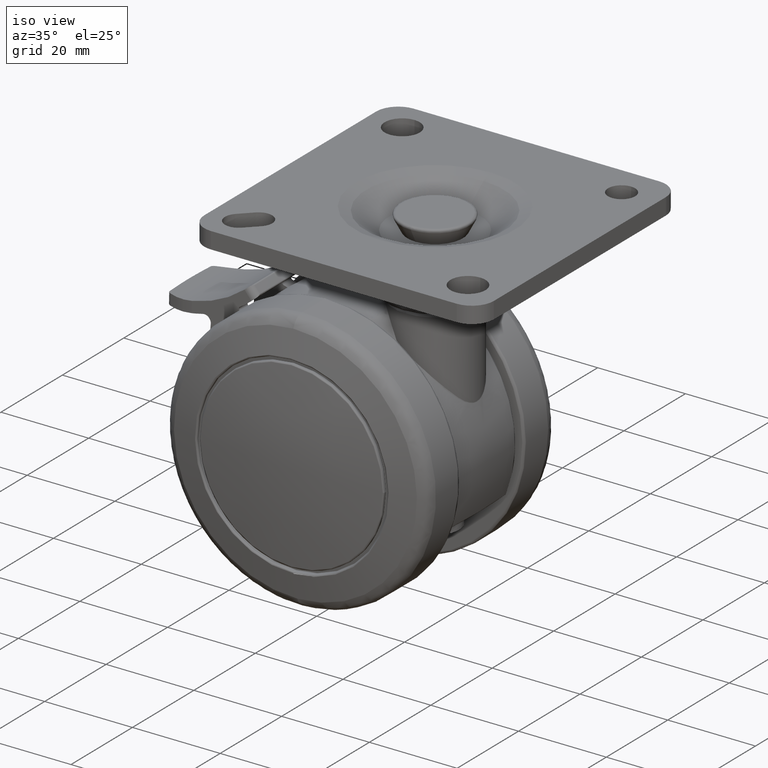
[diagram: clean part render]
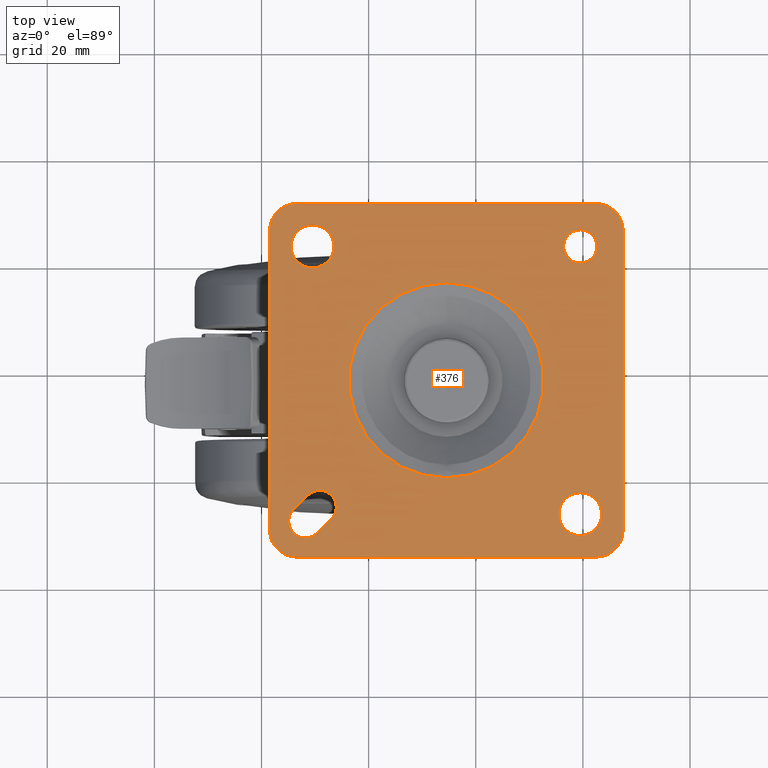
[diagram: tour spotlight — one face highlighted and labeled with its STEP entity id]
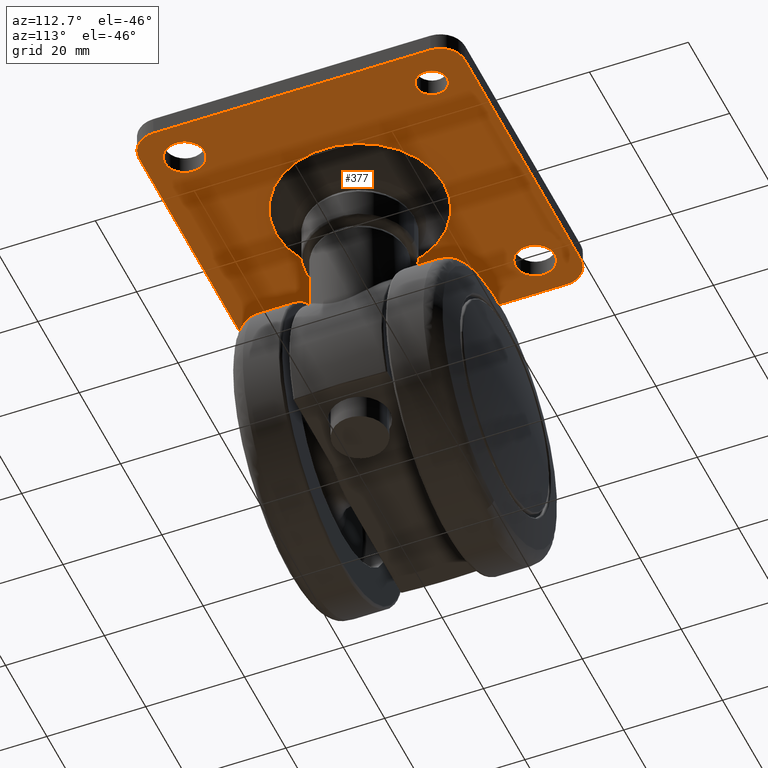
[diagram: tour spotlight — one face highlighted and labeled with its STEP entity id]
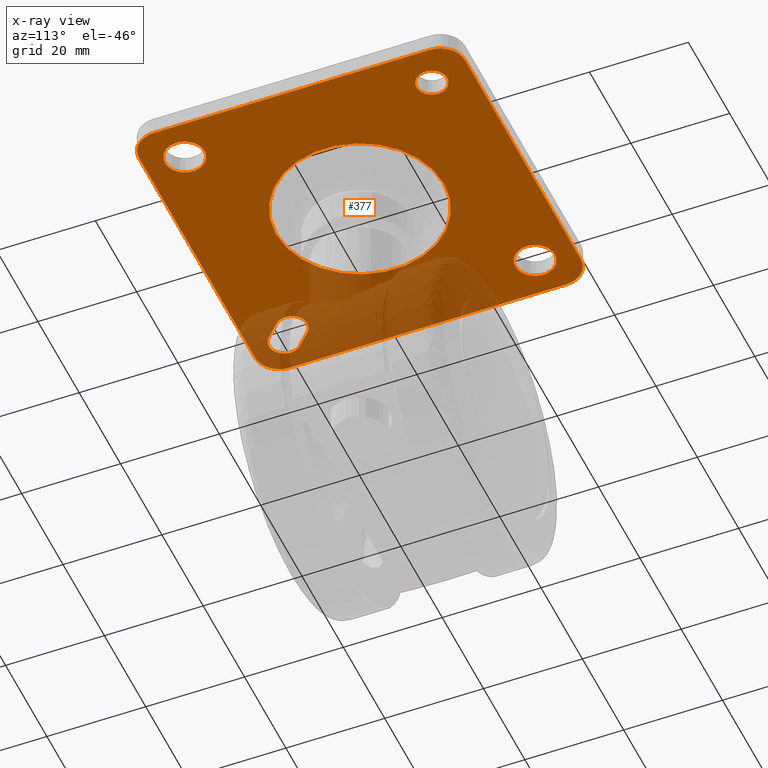
[diagram: x-ray of the same camera — body ghosted, this tour face saturated]
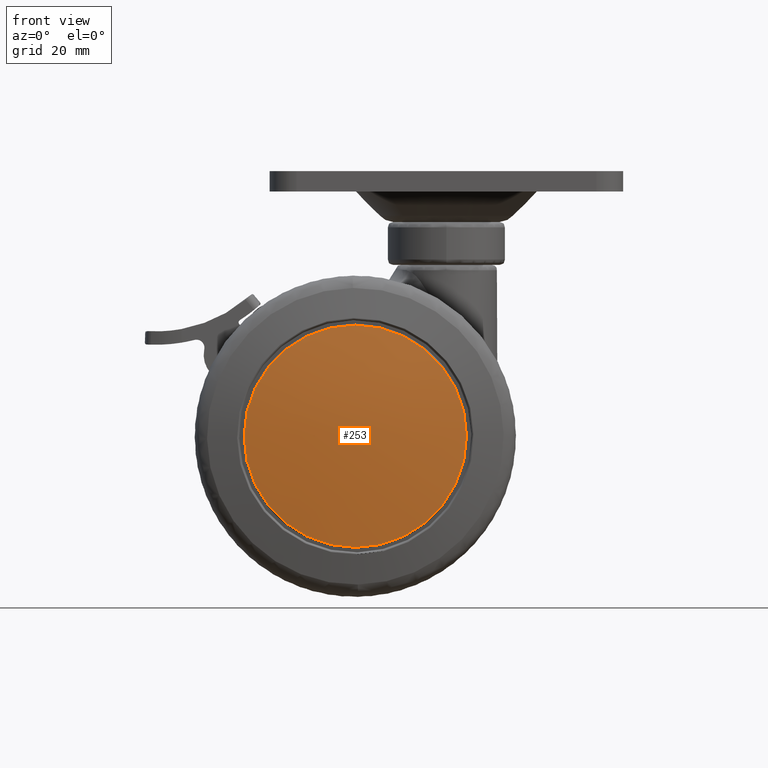
[diagram: tour spotlight — one face highlighted and labeled with its STEP entity id]
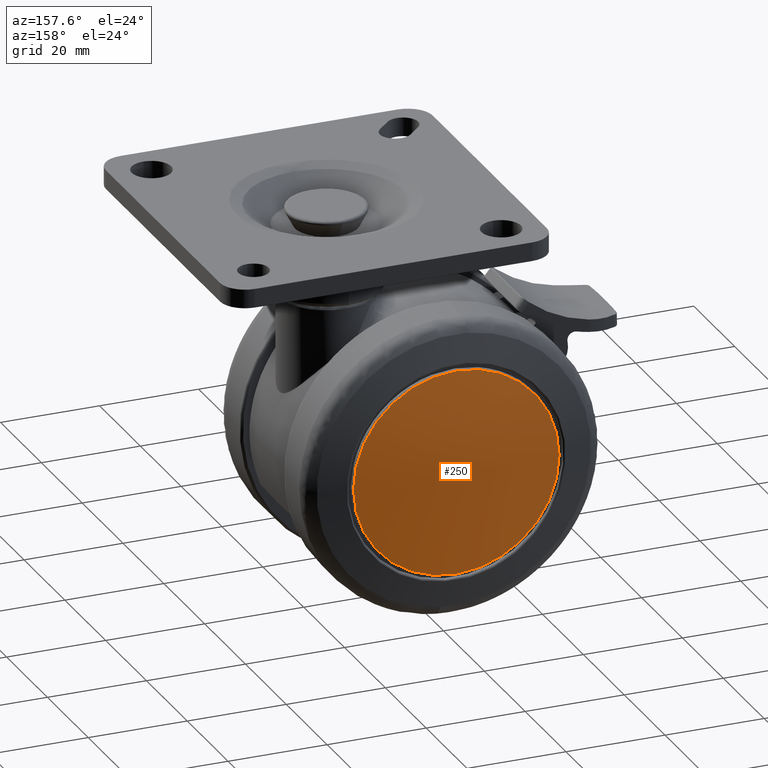
[diagram: tour spotlight — one face highlighted and labeled with its STEP entity id]
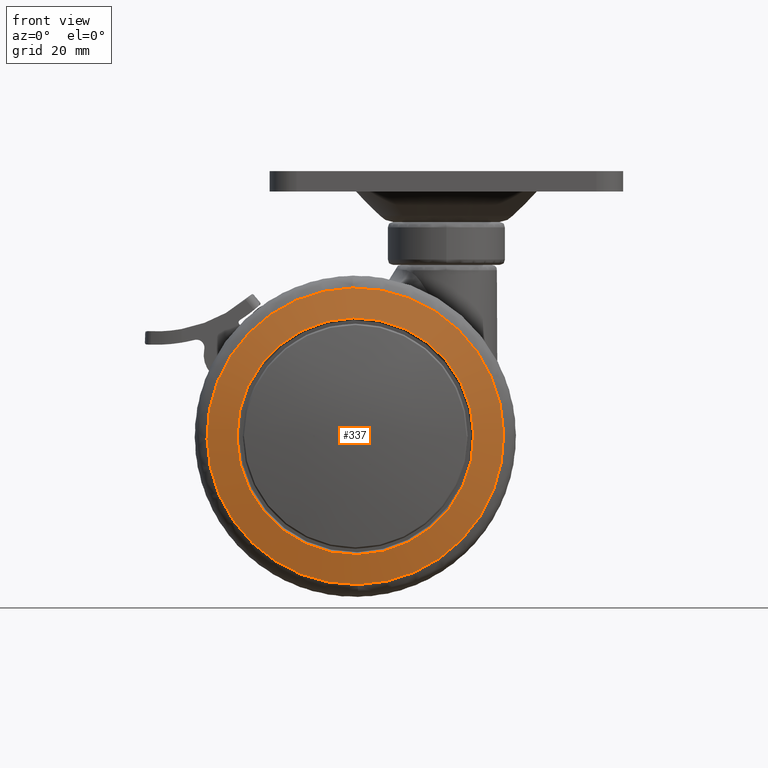
[diagram: tour spotlight — one face highlighted and labeled with its STEP entity id]
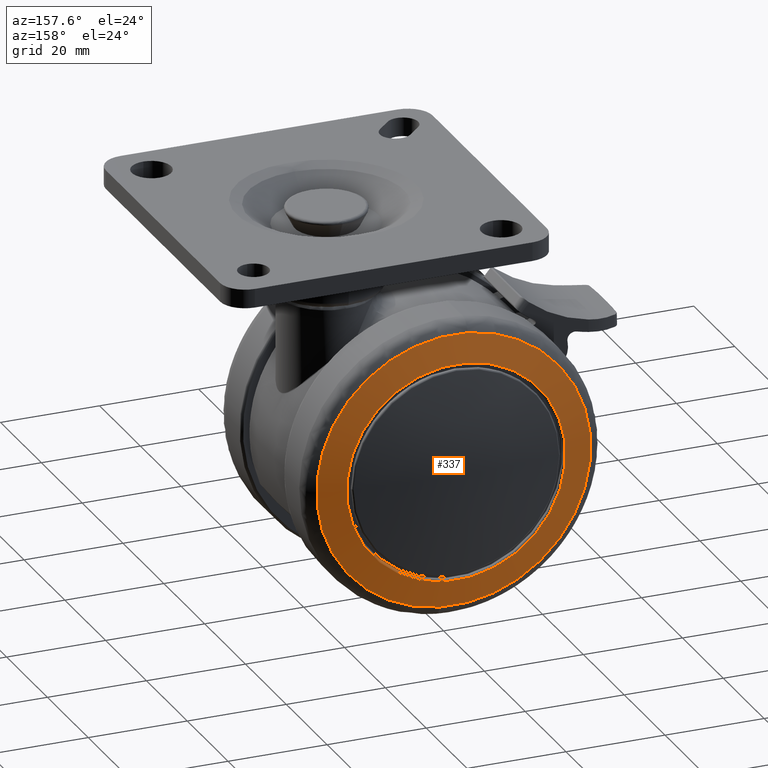
[diagram: tour spotlight — one face highlighted and labeled with its STEP entity id]
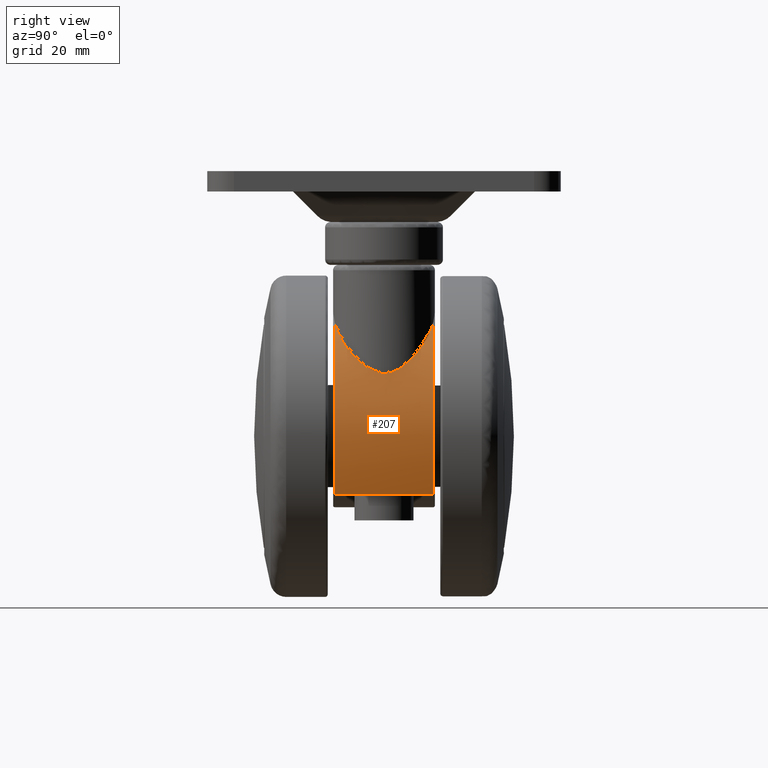
[diagram: tour spotlight — one face highlighted and labeled with its STEP entity id]
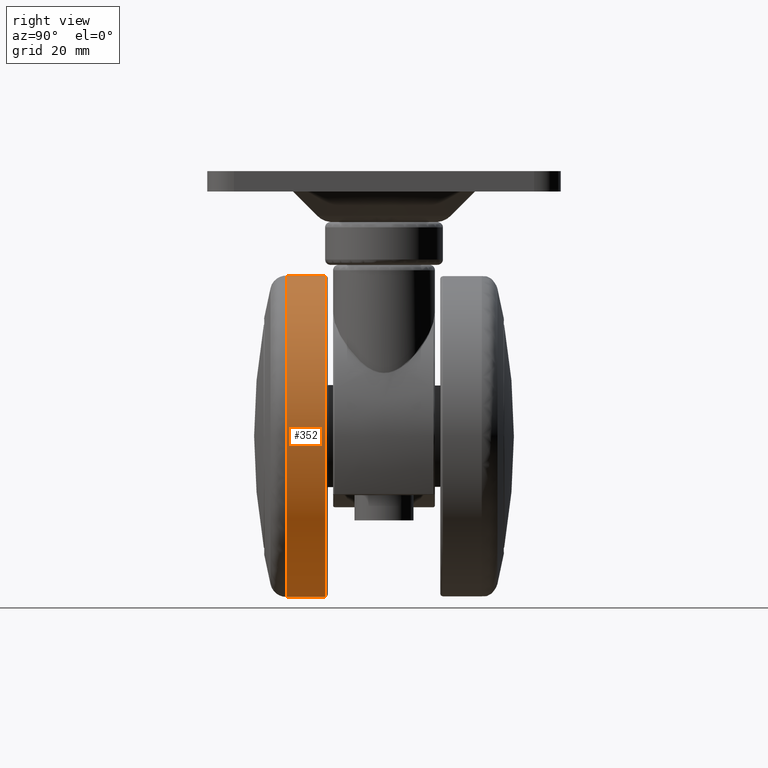
[diagram: tour spotlight — one face highlighted and labeled with its STEP entity id]
A machine part: a face-by-face anatomy tour. The part has 268 B-rep faces; the first image is the clean iso view, then the 8 largest visible faces are spotlighted one at a time (largest first), each with its STEP entity span.

Face 1 — top view, entity #376. In plain terms, the highlighted planar face has unit normal (-0, -0, -1).
Definition (entity closure, byte-faithful):
#376=ADVANCED_FACE('',(#2256,#2257,#2258,#2259,#2260,#2261),#2255,.F.);
#2255=PLANE('',#6944);
#2256=FACE_OUTER_BOUND('',#6945,.T.);
#2257=FACE_BOUND('',#6946,.T.);
#2258=FACE_BOUND('',#6947,.T.);
#2259=FACE_BOUND('',#6948,.T.);
#2260=FACE_BOUND('',#6949,.T.);
#2261=FACE_BOUND('',#6950,.T.);
#6941=CARTESIAN_POINT('',(-3.96000000000E+01,9.78097097541E-28,-3.96000000000E+01));
#6942=DIRECTION('',(-3.30514048027E-30,1.00000000000E+00,2.80045621353E-29));
#6943=DIRECTION('',(-9.99200722163E-16,-2.80045621353E-29,1.00000000000E+00));
#6944=AXIS2_PLACEMENT_3D('',#6941,#6942,#6943);
#6945=EDGE_LOOP('',(#8259,#8260,#8261,#8262,#8263,#8264,#8265,#8266));
#6946=EDGE_LOOP('',(#8267,#8268));
#6947=EDGE_LOOP('',(#8269,#8270,#8271,#8272));
#6948=EDGE_LOOP('',(#8273,#8274));
#6949=EDGE_LOOP('',(#8275,#8276));
#6950=EDGE_LOOP('',(#8277,#8278));
#8259=ORIENTED_EDGE('',*,*,#8905,.F.);
#8260=ORIENTED_EDGE('',*,*,#8906,.T.);
#8261=ORIENTED_EDGE('',*,*,#8907,.F.);
#8262=ORIENTED_EDGE('',*,*,#8908,.T.);
#8263=ORIENTED_EDGE('',*,*,#8909,.F.);
#8264=ORIENTED_EDGE('',*,*,#8910,.T.);
#8265=ORIENTED_EDGE('',*,*,#8911,.F.);
#8266=ORIENTED_EDGE('',*,*,#8912,.T.);
#8267=ORIENTED_EDGE('',*,*,#8913,.T.);
#8268=ORIENTED_EDGE('',*,*,#8914,.T.);
#8269=ORIENTED_EDGE('',*,*,#8915,.F.);
#8270=ORIENTED_EDGE('',*,*,#8916,.F.);
#8271=ORIENTED_EDGE('',*,*,#8917,.F.);
#8272=ORIENTED_EDGE('',*,*,#8918,.F.);
#8273=ORIENTED_EDGE('',*,*,#8919,.F.);
#8274=ORIENTED_EDGE('',*,*,#8920,.F.);
#8275=ORIENTED_EDGE('',*,*,#8921,.F.);
#8276=ORIENTED_EDGE('',*,*,#8922,.F.);
#8277=ORIENTED_EDGE('',*,*,#8923,.F.);
#8278=ORIENTED_EDGE('',*,*,#8924,.F.);
#8905=EDGE_CURVE('',#11885,#11886,#11887,.T.);
#8906=EDGE_CURVE('',#11885,#11893,#11894,.T.);
#8907=EDGE_CURVE('',#11900,#11893,#11901,.T.);
#8908=EDGE_CURVE('',#11900,#11907,#11908,.T.);
#8909=EDGE_CURVE('',#11914,#11907,#11915,.T.);
#8910=EDGE_CURVE('',#11914,#11921,#11922,.T.);
#8911=EDGE_CURVE('',#11928,#11921,#11929,.T.);
#8912=EDGE_CURVE('',#11928,#11886,#11935,.T.);
#8913=EDGE_CURVE('',#11941,#11942,#11943,.T.);
#8914=EDGE_CURVE('',#11942,#11941,#11949,.T.);
#8915=EDGE_CURVE('',#11955,#11956,#11957,.T.);
#8916=EDGE_CURVE('',#11963,#11955,#11964,.T.);
#8917=EDGE_CURVE('',#11970,#11963,#11971,.T.);
#8918=EDGE_CURVE('',#11956,#11970,#11977,.T.);
#8919=EDGE_CURVE('',#11983,#11984,#11985,.T.);
#8920=EDGE_CURVE('',#11984,#11983,#11991,.T.);
#8921=EDGE_CURVE('',#11997,#11998,#11999,.T.);
#8922=EDGE_CURVE('',#11998,#11997,#12005,.T.);
#8923=EDGE_CURVE('',#12011,#12012,#12013,.T.);
#8924=EDGE_CURVE('',#12012,#12011,#12019,.T.);
#11885=VERTEX_POINT('',#14919);
#11886=VERTEX_POINT('',#14920);
#11887=LINE('',#14921,#14922);
#11893=VERTEX_POINT('',#14924);
#11894=CIRCLE('',#14928,5.00000000000E+00);
#11900=VERTEX_POINT('',#14929);
#11901=LINE('',#14930,#14931);
#11907=VERTEX_POINT('',#14933);
#11908=CIRCLE('',#14937,5.00000000000E+00);
#11914=VERTEX_POINT('',#14938);
#11915=LINE('',#14939,#14940);
#11921=VERTEX_POINT('',#14942);
#11922=CIRCLE('',#14946,5.00000000000E+00);
#11928=VERTEX_POINT('',#14947);
#11929=LINE('',#14948,#14949);
#11935=CIRCLE('',#14954,5.00000000000E+00);
#11941=VERTEX_POINT('',#14955);
#11942=VERTEX_POINT('',#14956);
#11943=CIRCLE('',#14960,1.81938810846E+01);
#11949=CIRCLE('',#14964,1.81938810846E+01);
#11955=VERTEX_POINT('',#14965);
#11956=VERTEX_POINT('',#14966);
#11957=LINE('',#14967,#14968);
#11963=VERTEX_POINT('',#14970);
#11964=CIRCLE('',#14974,3.10000000000E+00);
#11970=VERTEX_POINT('',#14975);
#11971=LINE('',#14976,#14977);
#11977=CIRCLE('',#14982,3.10000000000E+00);
#11983=VERTEX_POINT('',#14983);
#11984=VERTEX_POINT('',#14984);
#11985=CIRCLE('',#14988,3.10000000000E+00);
#11991=CIRCLE('',#14992,3.10000000000E+00);
#11997=VERTEX_POINT('',#14993);
#11998=VERTEX_POINT('',#14994);
#11999=CIRCLE('',#14998,4.00000000000E+00);
#12005=CIRCLE('',#15002,4.00000000000E+00);
#12011=VERTEX_POINT('',#15003);
#12012=VERTEX_POINT('',#15004);
#12013=CIRCLE('',#15008,4.00000000000E+00);
#12019=CIRCLE('',#15012,4.00000000000E+00);
#14919=CARTESIAN_POINT('',(2.80000000000E+01,-8.32667268469E-14,-3.30000000000E+01));
#14920=CARTESIAN_POINT('',(-2.80000000000E+01,-8.32667268469E-14,-3.30000000000E+01));
#14921=CARTESIAN_POINT('',(2.80000000000E+01,-8.32667268469E-14,-3.30000000000E+01));
#14922=VECTOR('',#14923,5.60000000000E+01);
#14923=DIRECTION('',(-1.00000000000E+00,0.00000000000E+00,1.26882631386E-16));
#14924=CARTESIAN_POINT('',(3.30000000000E+01,0.00000000000E+00,-2.80000000000E+01));
#14925=CARTESIAN_POINT('',(2.80000000000E+01,0.00000000000E+00,-2.80000000000E+01));
#14926=DIRECTION('',(3.30514048027E-30,-1.00000000000E+00,2.77679038638E-29));
#14927=DIRECTION('',(-8.52651282912E-15,2.77679038638E-29,1.00000000000E+00));
#14928=AXIS2_PLACEMENT_3D('',#14925,#14926,#14927);
#14929=CARTESIAN_POINT('',(3.30000000000E+01,0.00000000000E+00,2.80000000000E+01));
#14930=CARTESIAN_POINT('',(3.30000000000E+01,0.00000000000E+00,2.80000000000E+01));
#14931=VECTOR('',#14932,5.60000000000E+01);
#14932=DIRECTION('',(0.00000000000E+00,0.00000000000E+00,-1.00000000000E+00));
#14933=CARTESIAN_POINT('',(2.80000000000E+01,0.00000000000E+00,3.30000000000E+01));
#14934=CARTESIAN_POINT('',(2.80000000000E+01,0.00000000000E+00,2.80000000000E+01));
#14935=DIRECTION('',(3.30514048027E-30,-1.00000000000E+00,2.83989925880E-29));
#14936=DIRECTION('',(-1.00000000000E+00,-3.30514048027E-30,7.81597009336E-15));
#14937=AXIS2_PLACEMENT_3D('',#14934,#14935,#14936);
#14938=CARTESIAN_POINT('',(-2.80000000000E+01,0.00000000000E+00,3.30000000000E+01));
#14939=CARTESIAN_POINT('',(-2.80000000000E+01,0.00000000000E+00,3.30000000000E+01));
#14940=VECTOR('',#14941,5.60000000000E+01);
#14941=DIRECTION('',(1.00000000000E+00,0.00000000000E+00,-2.53765262771E-16));
#14942=CARTESIAN_POINT('',(-3.30000000000E+01,0.00000000000E+00,2.80000000000E+01));
#14943=CARTESIAN_POINT('',(-2.80000000000E+01,0.00000000000E+00,2.80000000000E+01));
#14944=DIRECTION('',(3.30514048027E-30,-1.00000000000E+00,2.83989925880E-29));
#14945=DIRECTION('',(4.26325641456E-15,-2.83989925880E-29,-1.00000000000E+00));
#14946=AXIS2_PLACEMENT_3D('',#14943,#14944,#14945);
#14947=CARTESIAN_POINT('',(-3.30000000000E+01,0.00000000000E+00,-2.80000000000E+01));
#14948=CARTESIAN_POINT('',(-3.30000000000E+01,0.00000000000E+00,-2.80000000000E+01));
#14949=VECTOR('',#14950,5.60000000000E+01);
#14950=DIRECTION('',(2.53765262771E-16,0.00000000000E+00,1.00000000000E+00));
#14951=CARTESIAN_POINT('',(-2.80000000000E+01,0.00000000000E+00,-2.80000000000E+01));
#14952=DIRECTION('',(3.30514048027E-30,-1.00000000000E+00,2.83989925880E-29));
#14953=DIRECTION('',(1.00000000000E+00,3.30514048027E-30,-1.27897692437E-14));
#14954=AXIS2_PLACEMENT_3D('',#14951,#14952,#14953);
#14955=CARTESIAN_POINT('',(-1.81793391187E-14,5.17492753825E-28,1.81938810846E+01));
#14956=CARTESIAN_POINT('',(1.95399252334E-14,-5.17492753825E-28,-1.81938810846E+01));
#14957=CARTESIAN_POINT('',(0.00000000000E+00,0.00000000000E+00,9.02056207508E-14));
#14958=DIRECTION('',(-3.30514048027E-30,1.00000000000E+00,-2.84432305245E-29));
#14959=DIRECTION('',(-1.12166135754E-15,2.84432305245E-29,1.00000000000E+00));
#14960=AXIS2_PLACEMENT_3D('',#14957,#14958,#14959);
#14961=CARTESIAN_POINT('',(0.00000000000E+00,0.00000000000E+00,9.02056207508E-14));
#14962=DIRECTION('',(-3.30514048027E-30,1.00000000000E+00,-2.84432305245E-29));
#14963=DIRECTION('',(-1.12166135754E-15,2.84432305245E-29,1.00000000000E+00));
#14964=AXIS2_PLACEMENT_3D('',#14961,#14962,#14963);
#14965=CARTESIAN_POINT('',(-2.58485281374E+01,-8.32667268469E-14,-2.14644660941E+01));
#14966=CARTESIAN_POINT('',(-2.85355339059E+01,0.00000000000E+00,-2.41514718626E+01));
#14967=CARTESIAN_POINT('',(-2.58485281374E+01,-8.32667268469E-14,-2.14644660941E+01));
#14968=VECTOR('',#14969,3.80000000000E+00);
#14969=DIRECTION('',(-7.07106781187E-01,2.19122965387E-14,-7.07106781187E-01));
#14970=CARTESIAN_POINT('',(-2.14644660941E+01,0.00000000000E+00,-2.58485281374E+01));
#14971=CARTESIAN_POINT('',(-2.36564971157E+01,0.00000000000E+00,-2.36564971157E+01));
#14972=DIRECTION('',(3.30514048027E-30,-1.00000000000E+00,2.83989925880E-29));
#14973=DIRECTION('',(-7.07106781187E-01,1.77440329914E-29,7.07106781187E-01));
#14974=AXIS2_PLACEMENT_3D('',#14971,#14972,#14973);
#14975=CARTESIAN_POINT('',(-2.41514718626E+01,0.00000000000E+00,-2.85355339059E+01));
#14976=CARTESIAN_POINT('',(-2.41514718626E+01,0.00000000000E+00,-2.85355339059E+01));
#14977=VECTOR('',#14978,3.80000000000E+00);
#14978=DIRECTION('',(7.07106781187E-01,0.00000000000E+00,7.07106781187E-01));
#14979=CARTESIAN_POINT('',(-2.63435028843E+01,0.00000000000E+00,-2.63435028843E+01));
#14980=DIRECTION('',(3.30514048027E-30,-1.00000000000E+00,2.83989925880E-29));
#14981=DIRECTION('',(-1.14603667058E-15,2.83989925880E-29,1.00000000000E+00));
#14982=AXIS2_PLACEMENT_3D('',#14979,#14980,#14981);
#14983=CARTESIAN_POINT('',(2.50000000000E+01,8.80368770227E-29,2.81000000000E+01));
#14984=CARTESIAN_POINT('',(2.50000000000E+01,-8.80368770227E-29,2.19000000000E+01));
#14985=CARTESIAN_POINT('',(2.50000000000E+01,0.00000000000E+00,2.50000000000E+01));
#14986=DIRECTION('',(3.30514048027E-30,-1.00000000000E+00,2.83989925880E-29));
#14987=DIRECTION('',(1.14603667058E-15,-2.83989925880E-29,-1.00000000000E+00));
#14988=AXIS2_PLACEMENT_3D('',#14985,#14986,#14987);
#14989=CARTESIAN_POINT('',(2.50000000000E+01,0.00000000000E+00,2.50000000000E+01));
#14990=DIRECTION('',(3.30514048027E-30,-1.00000000000E+00,2.83989925880E-29));
#14991=DIRECTION('',(1.14603667058E-15,-2.83989925880E-29,-1.00000000000E+00));
#14992=AXIS2_PLACEMENT_3D('',#14989,#14990,#14991);
#14993=CARTESIAN_POINT('',(2.50000000000E+01,-8.32667268469E-14,-2.10000000000E+01));
#14994=CARTESIAN_POINT('',(2.50000000000E+01,-8.32667268469E-14,-2.90000000000E+01));
#14995=CARTESIAN_POINT('',(2.50000000000E+01,-8.32667268469E-14,-2.50000000000E+01));
#14996=DIRECTION('',(3.30514048027E-30,-1.00000000000E+00,2.83989925880E-29));
#14997=DIRECTION('',(8.88178419700E-16,-2.83989925880E-29,-1.00000000000E+00));
#14998=AXIS2_PLACEMENT_3D('',#14995,#14996,#14997);
#14999=CARTESIAN_POINT('',(2.50000000000E+01,-8.32667268469E-14,-2.50000000000E+01));
#15000=DIRECTION('',(3.30514048027E-30,-1.00000000000E+00,2.83989925880E-29));
#15001=DIRECTION('',(8.88178419700E-16,-2.83989925880E-29,-1.00000000000E+00));
#15002=AXIS2_PLACEMENT_3D('',#14999,#15000,#15001);
#15003=CARTESIAN_POINT('',(-2.50000000000E+01,1.13595970352E-28,2.90000000000E+01));
#15004=CARTESIAN_POINT('',(-2.50000000000E+01,-1.13595970352E-28,2.10000000000E+01));
#15005=CARTESIAN_POINT('',(-2.50000000000E+01,0.00000000000E+00,2.50000000000E+01));
#15006=DIRECTION('',(3.30514048027E-30,-1.00000000000E+00,2.83989925880E-29));
#15007=DIRECTION('',(8.88178419700E-16,-2.83989925880E-29,-1.00000000000E+00));
#15008=AXIS2_PLACEMENT_3D('',#15005,#15006,#15007);
#15009=CARTESIAN_POINT('',(-2.50000000000E+01,0.00000000000E+00,2.50000000000E+01));
#15010=DIRECTION('',(3.30514048027E-30,-1.00000000000E+00,2.83989925880E-29));
#15011=DIRECTION('',(8.88178419700E-16,-2.83989925880E-29,-1.00000000000E+00));
#15012=AXIS2_PLACEMENT_3D('',#15009,#15010,#15011);

Face 2 — auxiliary view, entity #377. An x-ray twin of the same camera follows (body ghosted, this face saturated) — the face is partly hidden behind the body. In plain terms, the highlighted planar face has unit normal (-0, -0, -1).
Definition (entity closure, byte-faithful):
#377=ADVANCED_FACE('',(#2271,#2272,#2273,#2274,#2275,#2276),#2270,.T.);
#2270=PLANE('',#6954);
#2271=FACE_OUTER_BOUND('',#6955,.T.);
#2272=FACE_BOUND('',#6956,.T.);
#2273=FACE_BOUND('',#6957,.T.);
#2274=FACE_BOUND('',#6958,.T.);
#2275=FACE_BOUND('',#6959,.T.);
#2276=FACE_BOUND('',#6960,.T.);
#6951=CARTESIAN_POINT('',(-3.96000000000E+01,3.80000000000E+00,-3.96000000000E+01));
#6952=DIRECTION('',(-3.30514048027E-30,1.00000000000E+00,2.80045621353E-29));
#6953=DIRECTION('',(-9.99200722163E-16,-2.80045621353E-29,1.00000000000E+00));
#6954=AXIS2_PLACEMENT_3D('',#6951,#6952,#6953);
#6955=EDGE_LOOP('',(#8279,#8280,#8281,#8282,#8283,#8284,#8285,#8286));
#6956=EDGE_LOOP('',(#8287,#8288,#8289,#8290));
#6957=EDGE_LOOP('',(#8291,#8292));
#6958=EDGE_LOOP('',(#8293,#8294));
#6959=EDGE_LOOP('',(#8295,#8296));
#6960=EDGE_LOOP('',(#8297,#8298));
#8279=ORIENTED_EDGE('',*,*,#8925,.T.);
#8280=ORIENTED_EDGE('',*,*,#8926,.T.);
#8281=ORIENTED_EDGE('',*,*,#8927,.T.);
#8282=ORIENTED_EDGE('',*,*,#8928,.T.);
#8283=ORIENTED_EDGE('',*,*,#8929,.T.);
#8284=ORIENTED_EDGE('',*,*,#8930,.T.);
#8285=ORIENTED_EDGE('',*,*,#8931,.T.);
#8286=ORIENTED_EDGE('',*,*,#8932,.T.);
#8287=ORIENTED_EDGE('',*,*,#8933,.F.);
#8288=ORIENTED_EDGE('',*,*,#8934,.F.);
#8289=ORIENTED_EDGE('',*,*,#8935,.F.);
#8290=ORIENTED_EDGE('',*,*,#8936,.F.);
#8291=ORIENTED_EDGE('',*,*,#8937,.F.);
#8292=ORIENTED_EDGE('',*,*,#8938,.F.);
#8293=ORIENTED_EDGE('',*,*,#8939,.F.);
#8294=ORIENTED_EDGE('',*,*,#8940,.F.);
#8295=ORIENTED_EDGE('',*,*,#8941,.F.);
#8296=ORIENTED_EDGE('',*,*,#8942,.F.);
#8297=ORIENTED_EDGE('',*,*,#8943,.F.);
#8298=ORIENTED_EDGE('',*,*,#8944,.F.);
#8925=EDGE_CURVE('',#12025,#12026,#12027,.T.);
#8926=EDGE_CURVE('',#12026,#12033,#12034,.T.);
#8927=EDGE_CURVE('',#12033,#12040,#12041,.T.);
#8928=EDGE_CURVE('',#12040,#12047,#12048,.T.);
#8929=EDGE_CURVE('',#12047,#12054,#12055,.T.);
#8930=EDGE_CURVE('',#12054,#12061,#12062,.T.);
#8931=EDGE_CURVE('',#12061,#12068,#12069,.T.);
#8932=EDGE_CURVE('',#12068,#12025,#12075,.T.);
#8933=EDGE_CURVE('',#12081,#12082,#12083,.T.);
#8934=EDGE_CURVE('',#12089,#12081,#12090,.T.);
#8935=EDGE_CURVE('',#12096,#12089,#12097,.T.);
#8936=EDGE_CURVE('',#12082,#12096,#12103,.T.);
#8937=EDGE_CURVE('',#12109,#12110,#12111,.T.);
#8938=EDGE_CURVE('',#12110,#12109,#12117,.T.);
#8939=EDGE_CURVE('',#12123,#12124,#12125,.T.);
#8940=EDGE_CURVE('',#12124,#12123,#12131,.T.);
#8941=EDGE_CURVE('',#12137,#12138,#12139,.T.);
#8942=EDGE_CURVE('',#12138,#12137,#12145,.T.);
#8943=EDGE_CURVE('',#12151,#12152,#12153,.T.);
#8944=EDGE_CURVE('',#12152,#12151,#12159,.T.);
#12025=VERTEX_POINT('',#15013);
#12026=VERTEX_POINT('',#15014);
#12027=LINE('',#15015,#15016);
#12033=VERTEX_POINT('',#15018);
#12034=CIRCLE('',#15022,5.00000000000E+00);
#12040=VERTEX_POINT('',#15023);
#12041=LINE('',#15024,#15025);
#12047=VERTEX_POINT('',#15027);
#12048=CIRCLE('',#15031,5.00000000000E+00);
#12054=VERTEX_POINT('',#15032);
#12055=LINE('',#15033,#15034);
#12061=VERTEX_POINT('',#15036);
#12062=CIRCLE('',#15040,5.00000000000E+00);
#12068=VERTEX_POINT('',#15041);
#12069=LINE('',#15042,#15043);
#12075=CIRCLE('',#15048,5.00000000000E+00);
#12081=VERTEX_POINT('',#15049);
#12082=VERTEX_POINT('',#15050);
#12083=CIRCLE('',#15054,3.10000000000E+00);
#12089=VERTEX_POINT('',#15055);
#12090=LINE('',#15056,#15057);
#12096=VERTEX_POINT('',#15059);
#12097=CIRCLE('',#15063,3.10000000000E+00);
#12103=LINE('',#15064,#15065);
#12109=VERTEX_POINT('',#15067);
#12110=VERTEX_POINT('',#15068);
#12111=CIRCLE('',#15072,3.10000000000E+00);
#12117=CIRCLE('',#15076,3.10000000000E+00);
#12123=VERTEX_POINT('',#15077);
#12124=VERTEX_POINT('',#15078);
#12125=CIRCLE('',#15082,4.00000000000E+00);
#12131=CIRCLE('',#15086,4.00000000000E+00);
#12137=VERTEX_POINT('',#15087);
#12138=VERTEX_POINT('',#15088);
#12139=CIRCLE('',#15092,4.00000000000E+00);
#12145=CIRCLE('',#15096,4.00000000000E+00);
#12151=VERTEX_POINT('',#15097);
#12152=VERTEX_POINT('',#15098);
#12153=CIRCLE('',#15102,1.70000000000E+01);
#12159=CIRCLE('',#15106,1.70000000000E+01);
#15013=CARTESIAN_POINT('',(3.30000000000E+01,3.80000000000E+00,2.80000000000E+01));
#15014=CARTESIAN_POINT('',(3.30000000000E+01,3.80000000000E+00,-2.80000000000E+01));
#15015=CARTESIAN_POINT('',(3.30000000000E+01,3.80000000000E+00,2.80000000000E+01));
#15016=VECTOR('',#15017,5.60000000000E+01);
#15017=DIRECTION('',(0.00000000000E+00,0.00000000000E+00,-1.00000000000E+00));
#15018=CARTESIAN_POINT('',(2.80000000000E+01,3.80000000000E+00,-3.30000000000E+01));
#15019=CARTESIAN_POINT('',(2.80000000000E+01,3.80000000000E+00,-2.80000000000E+01));
#15020=DIRECTION('',(0.00000000000E+00,1.00000000000E+00,-2.83989925880E-29));
#15021=DIRECTION('',(-1.00000000000E+00,-0.00000000000E+00,-0.00000000000E+00));
#15022=AXIS2_PLACEMENT_3D('',#15019,#15020,#15021);
#15023=CARTESIAN_POINT('',(-2.80000000000E+01,3.80000000000E+00,-3.30000000000E+01));
#15024=CARTESIAN_POINT('',(2.80000000000E+01,3.80000000000E+00,-3.30000000000E+01));
#15025=VECTOR('',#15026,5.60000000000E+01);
#15026=DIRECTION('',(-1.00000000000E+00,0.00000000000E+00,1.26882631386E-16));
#15027=CARTESIAN_POINT('',(-3.30000000000E+01,3.80000000000E+00,-2.80000000000E+01));
#15028=CARTESIAN_POINT('',(-2.80000000000E+01,3.80000000000E+00,-2.80000000000E+01));
#15029=DIRECTION('',(-3.30514048027E-30,1.00000000000E+00,-4.69688711785E-45));
#15030=DIRECTION('',(-1.42108547152E-15,-0.00000000000E+00,1.00000000000E+00));
#15031=AXIS2_PLACEMENT_3D('',#15028,#15029,#15030);
#15032=CARTESIAN_POINT('',(-3.30000000000E+01,3.80000000000E+00,2.80000000000E+01));
#15033=CARTESIAN_POINT('',(-3.30000000000E+01,3.80000000000E+00,-2.80000000000E+01));
#15034=VECTOR('',#15035,5.60000000000E+01);
#15035=DIRECTION('',(2.53765262771E-16,0.00000000000E+00,1.00000000000E+00));
#15036=CARTESIAN_POINT('',(-2.80000000000E+01,3.80000000000E+00,3.30000000000E+01));
#15037=CARTESIAN_POINT('',(-2.80000000000E+01,3.80000000000E+00,2.80000000000E+01));
#15038=DIRECTION('',(0.00000000000E+00,1.00000000000E+00,-2.83989925880E-29));
#15039=DIRECTION('',(1.00000000000E+00,-0.00000000000E+00,-0.00000000000E+00));
#15040=AXIS2_PLACEMENT_3D('',#15037,#15038,#15039);
#15041=CARTESIAN_POINT('',(2.80000000000E+01,3.80000000000E+00,3.30000000000E+01));
#15042=CARTESIAN_POINT('',(-2.80000000000E+01,3.80000000000E+00,3.30000000000E+01));
#15043=VECTOR('',#15044,5.60000000000E+01);
#15044=DIRECTION('',(1.00000000000E+00,0.00000000000E+00,-5.96348367513E-15));
#15045=CARTESIAN_POINT('',(2.80000000000E+01,3.80000000000E+00,2.80000000000E+01));
#15046=DIRECTION('',(-3.30514048027E-30,1.00000000000E+00,-3.99235405017E-44));
#15047=DIRECTION('',(1.20792265079E-14,-0.00000000000E+00,-1.00000000000E+00));
#15048=AXIS2_PLACEMENT_3D('',#15045,#15046,#15047);
#15049=CARTESIAN_POINT('',(-2.58485281374E+01,3.80000000000E+00,-2.14644660941E+01));
#15050=CARTESIAN_POINT('',(-2.14644660941E+01,3.80000000000E+00,-2.58485281374E+01));
#15051=CARTESIAN_POINT('',(-2.36564971157E+01,3.80000000000E+00,-2.36564971157E+01));
#15052=DIRECTION('',(-1.58520665341E-29,1.00000000000E+00,-1.58520665341E-29));
#15053=DIRECTION('',(7.07106781187E-01,-0.00000000000E+00,-7.07106781187E-01));
#15054=AXIS2_PLACEMENT_3D('',#15051,#15052,#15053);
#15055=CARTESIAN_POINT('',(-2.85355339059E+01,3.80000000000E+00,-2.41514718626E+01));
#15056=CARTESIAN_POINT('',(-2.85355339059E+01,3.80000000000E+00,-2.41514718626E+01));
#15057=VECTOR('',#15058,3.80000000000E+00);
#15058=DIRECTION('',(7.07106781187E-01,-2.19707293294E-14,7.07106781187E-01));
#15059=CARTESIAN_POINT('',(-2.41514718626E+01,3.80000000000E+00,-2.85355339059E+01));
#15060=CARTESIAN_POINT('',(-2.63435028843E+01,3.80000000000E+00,-2.63435028843E+01));
#15061=DIRECTION('',(-1.58520665341E-29,1.00000000000E+00,-1.58520665341E-29));
#15062=DIRECTION('',(7.07106781187E-01,2.74534793264E-45,-7.07106781187E-01));
#15063=AXIS2_PLACEMENT_3D('',#15060,#15061,#15062);
#15064=CARTESIAN_POINT('',(-2.14644660941E+01,3.80000000000E+00,-2.58485281374E+01));
#15065=VECTOR('',#15066,3.80000000000E+00);
#15066=DIRECTION('',(-7.07106781187E-01,0.00000000000E+00,-7.07106781187E-01));
#15067=CARTESIAN_POINT('',(2.50000000000E+01,3.80000000000E+00,2.19000000000E+01));
#15068=CARTESIAN_POINT('',(2.50000000000E+01,3.80000000000E+00,2.81000000000E+01));
#15069=CARTESIAN_POINT('',(2.50000000000E+01,3.80000000000E+00,2.50000000000E+01));
#15070=DIRECTION('',(-3.30514048027E-30,1.00000000000E+00,-3.78781219182E-45));
#15071=DIRECTION('',(-1.14603667058E-15,6.22301527786E-61,1.00000000000E+00));
#15072=AXIS2_PLACEMENT_3D('',#15069,#15070,#15071);
#15073=CARTESIAN_POINT('',(2.50000000000E+01,3.80000000000E+00,2.50000000000E+01));
#15074=DIRECTION('',(-3.30514048027E-30,1.00000000000E+00,-3.78781219182E-45));
#15075=DIRECTION('',(-1.14603667058E-15,6.22301527786E-61,1.00000000000E+00));
#15076=AXIS2_PLACEMENT_3D('',#15073,#15074,#15075);
#15077=CARTESIAN_POINT('',(2.50000000000E+01,3.80000000000E+00,-2.90000000000E+01));
#15078=CARTESIAN_POINT('',(2.50000000000E+01,3.80000000000E+00,-2.10000000000E+01));
#15079=CARTESIAN_POINT('',(2.50000000000E+01,3.80000000000E+00,-2.50000000000E+01));
#15080=DIRECTION('',(-3.30514048027E-30,1.00000000000E+00,-2.93555444866E-45));
#15081=DIRECTION('',(-8.88178419700E-16,-0.00000000000E+00,1.00000000000E+00));
#15082=AXIS2_PLACEMENT_3D('',#15079,#15080,#15081);
#15083=CARTESIAN_POINT('',(2.50000000000E+01,3.80000000000E+00,-2.50000000000E+01));
#15084=DIRECTION('',(-3.30514048027E-30,1.00000000000E+00,-2.93555444866E-45));
#15085=DIRECTION('',(-8.88178419700E-16,-0.00000000000E+00,1.00000000000E+00));
#15086=AXIS2_PLACEMENT_3D('',#15083,#15084,#15085);
#15087=CARTESIAN_POINT('',(-2.50000000000E+01,3.80000000000E+00,2.10000000000E+01));
#15088=CARTESIAN_POINT('',(-2.50000000000E+01,3.80000000000E+00,2.90000000000E+01));
#15089=CARTESIAN_POINT('',(-2.50000000000E+01,3.80000000000E+00,2.50000000000E+01));
#15090=DIRECTION('',(-3.30514048027E-30,1.00000000000E+00,-2.93555444866E-45));
#15091=DIRECTION('',(-8.88178419700E-16,-0.00000000000E+00,1.00000000000E+00));
#15092=AXIS2_PLACEMENT_3D('',#15089,#15090,#15091);
#15093=CARTESIAN_POINT('',(-2.50000000000E+01,3.80000000000E+00,2.50000000000E+01));
#15094=DIRECTION('',(-3.30514048027E-30,1.00000000000E+00,-2.93555444866E-45));
#15095=DIRECTION('',(-8.88178419700E-16,-0.00000000000E+00,1.00000000000E+00));
#15096=AXIS2_PLACEMENT_3D('',#15093,#15094,#15095);
#15097=CARTESIAN_POINT('',(-2.30926389122E-14,3.80000000000E+00,1.70000000000E+01));
#15098=CARTESIAN_POINT('',(1.69863435197E-14,3.80000000000E+00,-1.70000000000E+01));
#15099=CARTESIAN_POINT('',(0.00000000000E+00,3.80000000000E+00,7.63278329430E-14));
#15100=DIRECTION('',(-3.30514048027E-30,1.00000000000E+00,-2.89773578375E-45));
#15101=DIRECTION('',(8.76736042248E-16,-0.00000000000E+00,-1.00000000000E+00));
#15102=AXIS2_PLACEMENT_3D('',#15099,#15100,#15101);
#15103=CARTESIAN_POINT('',(0.00000000000E+00,3.80000000000E+00,7.63278329430E-14));
#15104=DIRECTION('',(-3.30514048027E-30,1.00000000000E+00,-2.89773578375E-45));
#15105=DIRECTION('',(8.76736042248E-16,-0.00000000000E+00,-1.00000000000E+00));
#15106=AXIS2_PLACEMENT_3D('',#15103,#15104,#15105);

Face 3 — front view, entity #253. In plain terms, the highlighted spherical surface has radius 120 mm.
Definition (entity closure, byte-faithful):
#253=ADVANCED_FACE('',(#1013),#1012,.T.);
#1012=SPHERICAL_SURFACE('',#5364,1.20000000000E+02);
#1013=FACE_OUTER_BOUND('',#5365,.T.);
#5361=CARTESIAN_POINT('',(0.00000000000E+00,9.57482120051E+01,1.27086158542E-15));
#5362=DIRECTION('',(-1.00000000000E+00,0.00000000000E+00,0.00000000000E+00));
#5363=DIRECTION('',(-0.00000000000E+00,-9.84933707899E-01,-1.72932330827E-01));
#5364=AXIS2_PLACEMENT_3D('',#5361,#5362,#5363);
#5365=EDGE_LOOP('',(#7683,#7684,#7685));
#7683=ORIENTED_EDGE('',*,*,#8632,.T.);
#7684=ORIENTED_EDGE('',*,*,#8633,.T.);
#7685=ORIENTED_EDGE('',*,*,#8634,.T.);
#8632=EDGE_CURVE('',#10083,#10084,#10085,.T.);
#8633=EDGE_CURVE('',#10084,#10091,#10092,.T.);
#8634=EDGE_CURVE('',#10091,#10083,#10098,.T.);
#10083=VERTEX_POINT('',#13725);
#10084=VERTEX_POINT('',#13726);
#10085=CIRCLE('',#13730,2.07518796992E+01);
#10091=VERTEX_POINT('',#13731);
#10092=CIRCLE('',#13735,2.07518796992E+01);
#10098=CIRCLE('',#13739,2.07518796992E+01);
#13725=CARTESIAN_POINT('',(-1.25536726842E-15,-2.24438329427E+01,-2.07518796992E+01));
#13726=CARTESIAN_POINT('',(2.07518796992E+01,-2.24438329427E+01,-6.94525906636E-10));
#13727=CARTESIAN_POINT('',(0.00000000000E+00,-2.24438329427E+01,1.27086158542E-15));
#13728=DIRECTION('',(0.00000000000E+00,-1.00000000000E+00,0.00000000000E+00));
#13729=DIRECTION('',(3.06887758792E-16,0.00000000000E+00,-1.00000000000E+00));
#13730=AXIS2_PLACEMENT_3D('',#13727,#13728,#13729);
#13731=CARTESIAN_POINT('',(-2.07518795875E+01,-2.24438329427E+01,2.15363348966E-03));
#13732=CARTESIAN_POINT('',(0.00000000000E+00,-2.24438329427E+01,1.27086158542E-15));
#13733=DIRECTION('',(0.00000000000E+00,-1.00000000000E+00,0.00000000000E+00));
#13734=DIRECTION('',(3.06887758792E-16,0.00000000000E+00,-1.00000000000E+00));
#13735=AXIS2_PLACEMENT_3D('',#13732,#13733,#13734);
#13736=CARTESIAN_POINT('',(0.00000000000E+00,-2.24438329427E+01,1.27086158542E-15));
#13737=DIRECTION('',(0.00000000000E+00,-1.00000000000E+00,0.00000000000E+00));
#13738=DIRECTION('',(3.06887758792E-16,0.00000000000E+00,-1.00000000000E+00));
#13739=AXIS2_PLACEMENT_3D('',#13736,#13737,#13738);

Face 4 — auxiliary view, entity #250. In plain terms, the highlighted spherical surface has radius 120 mm.
Definition (entity closure, byte-faithful):
#250=ADVANCED_FACE('',(#981),#980,.T.);
#980=SPHERICAL_SURFACE('',#5347,1.20000000000E+02);
#981=FACE_OUTER_BOUND('',#5348,.T.);
#5344=CARTESIAN_POINT('',(0.00000000000E+00,-9.57482120051E+01,-5.05495253985E-16));
#5345=DIRECTION('',(-1.00000000000E+00,0.00000000000E+00,0.00000000000E+00));
#5346=DIRECTION('',(0.00000000000E+00,9.84933707899E-01,1.72932330827E-01));
#5347=AXIS2_PLACEMENT_3D('',#5344,#5345,#5346);
#5348=EDGE_LOOP('',(#7672,#7673,#7674));
#7672=ORIENTED_EDGE('',*,*,#8621,.T.);
#7673=ORIENTED_EDGE('',*,*,#8622,.T.);
#7674=ORIENTED_EDGE('',*,*,#8623,.T.);
#8621=EDGE_CURVE('',#10006,#10007,#10008,.T.);
#8622=EDGE_CURVE('',#10007,#10014,#10015,.T.);
#8623=EDGE_CURVE('',#10014,#10006,#10021,.T.);
#10006=VERTEX_POINT('',#13670);
#10007=VERTEX_POINT('',#13671);
#10008=CIRCLE('',#13675,2.07518796992E+01);
#10014=VERTEX_POINT('',#13676);
#10015=CIRCLE('',#13680,2.07518796992E+01);
#10021=CIRCLE('',#13684,2.07518796992E+01);
#13670=CARTESIAN_POINT('',(-1.25536726842E-15,2.24438329427E+01,2.07518796992E+01));
#13671=CARTESIAN_POINT('',(2.07518796992E+01,2.24438329427E+01,6.94527011545E-10));
#13672=CARTESIAN_POINT('',(0.00000000000E+00,2.24438329427E+01,-5.05495253985E-16));
#13673=DIRECTION('',(-0.00000000000E+00,1.00000000000E+00,0.00000000000E+00));
#13674=DIRECTION('',(3.06887758792E-16,0.00000000000E+00,1.00000000000E+00));
#13675=AXIS2_PLACEMENT_3D('',#13672,#13673,#13674);
#13676=CARTESIAN_POINT('',(-2.07518795875E+01,2.24438329427E+01,-2.15363348966E-03));
#13677=CARTESIAN_POINT('',(0.00000000000E+00,2.24438329427E+01,-5.05495253985E-16));
#13678=DIRECTION('',(-0.00000000000E+00,1.00000000000E+00,0.00000000000E+00));
#13679=DIRECTION('',(3.06887758792E-16,0.00000000000E+00,1.00000000000E+00));
#13680=AXIS2_PLACEMENT_3D('',#13677,#13678,#13679);
#13681=CARTESIAN_POINT('',(0.00000000000E+00,2.24438329427E+01,-5.05495253985E-16));
#13682=DIRECTION('',(-0.00000000000E+00,1.00000000000E+00,0.00000000000E+00));
#13683=DIRECTION('',(3.06887758792E-16,0.00000000000E+00,1.00000000000E+00));
#13684=AXIS2_PLACEMENT_3D('',#13681,#13682,#13683);

Face 5 — front view, entity #337. In plain terms, the highlighted spherical surface has radius 120 mm.
Definition (entity closure, byte-faithful):
#337=ADVANCED_FACE('',(#1861,#1862),#1860,.T.);
#1860=SPHERICAL_SURFACE('',#6282,1.20000000000E+02);
#1861=FACE_OUTER_BOUND('',#6283,.T.);
#1862=FACE_BOUND('',#6284,.T.);
#6279=CARTESIAN_POINT('',(0.00000000000E+00,0.00000000000E+00,-1.06080000000E+02));
#6280=DIRECTION('',(-1.00000000000E+00,6.93889390391E-17,0.00000000000E+00));
#6281=DIRECTION('',(-1.60128320859E-17,-2.30769230769E-01,9.73008510821E-01));
#6282=AXIS2_PLACEMENT_3D('',#6279,#6280,#6281);
#6283=EDGE_LOOP('',(#8098,#8099,#8100));
#6284=EDGE_LOOP('',(#8101,#8102,#8103));
#8098=ORIENTED_EDGE('',*,*,#8829,.T.);
#8099=ORIENTED_EDGE('',*,*,#8830,.T.);
#8100=ORIENTED_EDGE('',*,*,#8831,.T.);
#8101=ORIENTED_EDGE('',*,*,#8832,.T.);
#8102=ORIENTED_EDGE('',*,*,#8833,.T.);
#8103=ORIENTED_EDGE('',*,*,#8834,.T.);
#8829=EDGE_CURVE('',#11387,#11388,#11389,.T.);
#8830=EDGE_CURVE('',#11388,#11395,#11396,.T.);
#8831=EDGE_CURVE('',#11395,#11387,#11402,.T.);
#8832=EDGE_CURVE('',#11408,#11409,#11410,.T.);
#8833=EDGE_CURVE('',#11409,#11416,#11417,.T.);
#8834=EDGE_CURVE('',#11416,#11408,#11423,.T.);
#11387=VERTEX_POINT('',#14607);
#11388=VERTEX_POINT('',#14608);
#11389=CIRCLE('',#14612,2.76923076923E+01);
#11395=VERTEX_POINT('',#14613);
#11396=CIRCLE('',#14617,2.76923076923E+01);
#11402=CIRCLE('',#14621,2.76923076923E+01);
#11408=VERTEX_POINT('',#14622);
#11409=VERTEX_POINT('',#14623);
#11410=CIRCLE('',#14627,2.21052631579E+01);
#11416=VERTEX_POINT('',#14628);
#11417=CIRCLE('',#14632,2.21052631579E+01);
#11423=CIRCLE('',#14636,2.21052631579E+01);
#14607=CARTESIAN_POINT('',(-3.55579540600E-15,-2.76923076923E+01,1.06810212985E+01));
#14608=CARTESIAN_POINT('',(2.76923076923E+01,-8.68945183475E-09,1.06810212985E+01));
#14609=CARTESIAN_POINT('',(0.00000000000E+00,0.00000000000E+00,1.06810212985E+01));
#14610=DIRECTION('',(-0.00000000000E+00,0.00000000000E+00,1.00000000000E+00));
#14611=DIRECTION('',(2.38978183152E-16,-1.00000000000E+00,0.00000000000E+00));
#14612=AXIS2_PLACEMENT_3D('',#14609,#14610,#14611);
#14613=CARTESIAN_POINT('',(-2.76923075432E+01,2.87393060506E-03,1.06810212985E+01));
#14614=CARTESIAN_POINT('',(0.00000000000E+00,0.00000000000E+00,1.06810212985E+01));
#14615=DIRECTION('',(-0.00000000000E+00,0.00000000000E+00,1.00000000000E+00));
#14616=DIRECTION('',(2.38978183152E-16,-1.00000000000E+00,0.00000000000E+00));
#14617=AXIS2_PLACEMENT_3D('',#14614,#14615,#14616);
#14618=CARTESIAN_POINT('',(0.00000000000E+00,0.00000000000E+00,1.06810212985E+01));
#14619=DIRECTION('',(-0.00000000000E+00,0.00000000000E+00,1.00000000000E+00));
#14620=DIRECTION('',(2.38978183152E-16,-1.00000000000E+00,0.00000000000E+00));
#14621=AXIS2_PLACEMENT_3D('',#14618,#14619,#14620);
#14622=CARTESIAN_POINT('',(9.79324267598E-16,-2.21052631579E+01,1.18664172441E+01));
#14623=CARTESIAN_POINT('',(-2.21052630389E+01,2.29410089061E-03,1.18664172441E+01));
#14624=CARTESIAN_POINT('',(0.00000000000E+00,0.00000000000E+00,1.18664172441E+01));
#14625=DIRECTION('',(0.00000000000E+00,0.00000000000E+00,-1.00000000000E+00));
#14626=DIRECTION('',(-7.81578708957E-17,-1.00000000000E+00,-0.00000000000E+00));
#14627=AXIS2_PLACEMENT_3D('',#14624,#14625,#14626);
#14628=CARTESIAN_POINT('',(2.21052631579E+01,-7.36679842204E-10,1.18664172441E+01));
#14629=CARTESIAN_POINT('',(0.00000000000E+00,0.00000000000E+00,1.18664172441E+01));
#14630=DIRECTION('',(0.00000000000E+00,0.00000000000E+00,-1.00000000000E+00));
#14631=DIRECTION('',(-7.81578708957E-17,-1.00000000000E+00,-0.00000000000E+00));
#14632=AXIS2_PLACEMENT_3D('',#14629,#14630,#14631);
#14633=CARTESIAN_POINT('',(0.00000000000E+00,0.00000000000E+00,1.18664172441E+01));
#14634=DIRECTION('',(0.00000000000E+00,0.00000000000E+00,-1.00000000000E+00));
#14635=DIRECTION('',(-7.81578708957E-17,-1.00000000000E+00,-0.00000000000E+00));
#14636=AXIS2_PLACEMENT_3D('',#14633,#14634,#14635);

Face 6 — auxiliary view, entity #337. In plain terms, the highlighted spherical surface has radius 120 mm.
Definition (entity closure, byte-faithful):
#337=ADVANCED_FACE('',(#1861,#1862),#1860,.T.);
#1860=SPHERICAL_SURFACE('',#6282,1.20000000000E+02);
#1861=FACE_OUTER_BOUND('',#6283,.T.);
#1862=FACE_BOUND('',#6284,.T.);
#6279=CARTESIAN_POINT('',(0.00000000000E+00,0.00000000000E+00,-1.06080000000E+02));
#6280=DIRECTION('',(-1.00000000000E+00,6.93889390391E-17,0.00000000000E+00));
#6281=DIRECTION('',(-1.60128320859E-17,-2.30769230769E-01,9.73008510821E-01));
#6282=AXIS2_PLACEMENT_3D('',#6279,#6280,#6281);
#6283=EDGE_LOOP('',(#8098,#8099,#8100));
#6284=EDGE_LOOP('',(#8101,#8102,#8103));
#8098=ORIENTED_EDGE('',*,*,#8829,.T.);
#8099=ORIENTED_EDGE('',*,*,#8830,.T.);
#8100=ORIENTED_EDGE('',*,*,#8831,.T.);
#8101=ORIENTED_EDGE('',*,*,#8832,.T.);
#8102=ORIENTED_EDGE('',*,*,#8833,.T.);
#8103=ORIENTED_EDGE('',*,*,#8834,.T.);
#8829=EDGE_CURVE('',#11387,#11388,#11389,.T.);
#8830=EDGE_CURVE('',#11388,#11395,#11396,.T.);
#8831=EDGE_CURVE('',#11395,#11387,#11402,.T.);
#8832=EDGE_CURVE('',#11408,#11409,#11410,.T.);
#8833=EDGE_CURVE('',#11409,#11416,#11417,.T.);
#8834=EDGE_CURVE('',#11416,#11408,#11423,.T.);
#11387=VERTEX_POINT('',#14607);
#11388=VERTEX_POINT('',#14608);
#11389=CIRCLE('',#14612,2.76923076923E+01);
#11395=VERTEX_POINT('',#14613);
#11396=CIRCLE('',#14617,2.76923076923E+01);
#11402=CIRCLE('',#14621,2.76923076923E+01);
#11408=VERTEX_POINT('',#14622);
#11409=VERTEX_POINT('',#14623);
#11410=CIRCLE('',#14627,2.21052631579E+01);
#11416=VERTEX_POINT('',#14628);
#11417=CIRCLE('',#14632,2.21052631579E+01);
#11423=CIRCLE('',#14636,2.21052631579E+01);
#14607=CARTESIAN_POINT('',(-3.55579540600E-15,-2.76923076923E+01,1.06810212985E+01));
#14608=CARTESIAN_POINT('',(2.76923076923E+01,-8.68945183475E-09,1.06810212985E+01));
#14609=CARTESIAN_POINT('',(0.00000000000E+00,0.00000000000E+00,1.06810212985E+01));
#14610=DIRECTION('',(-0.00000000000E+00,0.00000000000E+00,1.00000000000E+00));
#14611=DIRECTION('',(2.38978183152E-16,-1.00000000000E+00,0.00000000000E+00));
#14612=AXIS2_PLACEMENT_3D('',#14609,#14610,#14611);
#14613=CARTESIAN_POINT('',(-2.76923075432E+01,2.87393060506E-03,1.06810212985E+01));
#14614=CARTESIAN_POINT('',(0.00000000000E+00,0.00000000000E+00,1.06810212985E+01));
#14615=DIRECTION('',(-0.00000000000E+00,0.00000000000E+00,1.00000000000E+00));
#14616=DIRECTION('',(2.38978183152E-16,-1.00000000000E+00,0.00000000000E+00));
#14617=AXIS2_PLACEMENT_3D('',#14614,#14615,#14616);
#14618=CARTESIAN_POINT('',(0.00000000000E+00,0.00000000000E+00,1.06810212985E+01));
#14619=DIRECTION('',(-0.00000000000E+00,0.00000000000E+00,1.00000000000E+00));
#14620=DIRECTION('',(2.38978183152E-16,-1.00000000000E+00,0.00000000000E+00));
#14621=AXIS2_PLACEMENT_3D('',#14618,#14619,#14620);
#14622=CARTESIAN_POINT('',(9.79324267598E-16,-2.21052631579E+01,1.18664172441E+01));
#14623=CARTESIAN_POINT('',(-2.21052630389E+01,2.29410089061E-03,1.18664172441E+01));
#14624=CARTESIAN_POINT('',(0.00000000000E+00,0.00000000000E+00,1.18664172441E+01));
#14625=DIRECTION('',(0.00000000000E+00,0.00000000000E+00,-1.00000000000E+00));
#14626=DIRECTION('',(-7.81578708957E-17,-1.00000000000E+00,-0.00000000000E+00));
#14627=AXIS2_PLACEMENT_3D('',#14624,#14625,#14626);
#14628=CARTESIAN_POINT('',(2.21052631579E+01,-7.36679842204E-10,1.18664172441E+01));
#14629=CARTESIAN_POINT('',(0.00000000000E+00,0.00000000000E+00,1.18664172441E+01));
#14630=DIRECTION('',(0.00000000000E+00,0.00000000000E+00,-1.00000000000E+00));
#14631=DIRECTION('',(-7.81578708957E-17,-1.00000000000E+00,-0.00000000000E+00));
#14632=AXIS2_PLACEMENT_3D('',#14629,#14630,#14631);
#14633=CARTESIAN_POINT('',(0.00000000000E+00,0.00000000000E+00,1.18664172441E+01));
#14634=DIRECTION('',(0.00000000000E+00,0.00000000000E+00,-1.00000000000E+00));
#14635=DIRECTION('',(-7.81578708957E-17,-1.00000000000E+00,-0.00000000000E+00));
#14636=AXIS2_PLACEMENT_3D('',#14633,#14634,#14635);

Face 7 — right view, entity #207. In plain terms, the highlighted face is a freeform B-spline surface patch.
Definition (entity closure, byte-faithful):
#207=ADVANCED_FACE('',(#548),#547,.T.);
#547=( BOUNDED_SURFACE() B_SPLINE_SURFACE( 2,2,((#2806,#2807,#2808),(#2809,#2810,#2811),(#2812,#2813,#2814)), .UNSPECIFIED.,.F.,.F.,.F.) B_SPLINE_SURFACE_WITH_KNOTS((3,3),(3,3),(-6.15009475986E-02,6.15009475986E-02),(0.00000000000E+00,1.47265756230E+00), .UNSPECIFIED. ) GEOMETRIC_REPRESENTATION_ITEM() RATIONAL_B_SPLINE_SURFACE(((1.00000000000E+00,7.40939035183E-01,1.00000000000E+00),(9.98109412743E-01,7.39538225285E-01,9.98109412743E-01),(1.00000000000E+00,7.40939035183E-01,1.00000000000E+00))) REPRESENTATION_ITEM('') SURFACE() );
#548=FACE_OUTER_BOUND('',#2815,.T.);
#2806=CARTESIAN_POINT('',(1.91905806723E+01,9.21932776132E+00,2.13639684759E+01));
#2807=CARTESIAN_POINT('',(3.85544535933E+01,9.21932776132E+00,3.97001070829E+00));
#2808=CARTESIAN_POINT('',(2.31414887023E+01,9.21932776132E+00,-1.70049709268E+01));
#2809=CARTESIAN_POINT('',(1.95699566847E+01,1.69197988953E-12,2.17863098999E+01));
#2810=CARTESIAN_POINT('',(3.93166314093E+01,1.69197988953E-12,4.04849331689E+00));
#2811=CARTESIAN_POINT('',(2.35989696850E+01,1.69197988953E-12,-1.73411399136E+01));
#2812=CARTESIAN_POINT('',(1.91905806723E+01,-9.21932776132E+00,2.13639684759E+01));
#2813=CARTESIAN_POINT('',(3.85544535933E+01,-9.21932776132E+00,3.97001070829E+00));
#2814=CARTESIAN_POINT('',(2.31414887023E+01,-9.21932776132E+00,-1.70049709268E+01));
#2815=EDGE_LOOP('',(#7492,#7493,#7494,#7495));
#7492=ORIENTED_EDGE('',*,*,#8554,.T.);
#7493=ORIENTED_EDGE('',*,*,#8555,.T.);
#7494=ORIENTED_EDGE('',*,*,#8543,.T.);
#7495=ORIENTED_EDGE('',*,*,#8556,.T.);
#8543=EDGE_CURVE('',#9504,#9430,#9505,.T.);
#8554=EDGE_CURVE('',#9423,#9579,#9580,.T.);
#8555=EDGE_CURVE('',#9579,#9504,#9586,.T.);
#8556=EDGE_CURVE('',#9430,#9423,#9592,.T.);
#9423=VERTEX_POINT('',#12850);
#9430=VERTEX_POINT('',#12857);
#9504=VERTEX_POINT('',#13023);
#9505=CIRCLE('',#13027,2.87176023772E+01);
#9579=VERTEX_POINT('',#13080);
#9580=CIRCLE('',#13084,2.87176023772E+01);
#9586=(BOUNDED_CURVE() B_SPLINE_CURVE(3,(#13085,#13086,#13087,#13088,#13089,#13090),.UNSPECIFIED.,.F.,.F.) B_SPLINE_CURVE_WITH_KNOTS((4,2,4),(0.00000000000E+00,9.22240700294E-03,1.84448140059E-02),.UNSPECIFIED.) CURVE() GEOMETRIC_REPRESENTATION_ITEM() RATIONAL_B_SPLINE_CURVE((1.00000000000E+00,1.00000000000E+00,1.00000000000E+00,1.00000000000E+00,1.00000000000E+00,1.00000000000E+00)) REPRESENTATION_ITEM('') );
#9592=(BOUNDED_CURVE() B_SPLINE_CURVE(3,(#13091,#13092,#13093,#13094,#13095,#13096,#13097,#13098,#13099,#13100,#13101,#13102,#13103,#13104,#13105,#13106,#13107,#13108,#13109,#13110,#13111,#13112,#13113,#13114,#13115,#13116,#13117,#13118,#13119,#13120,#13121,#13122,#13123,#13124,#13125,#13126,#13127,#13128,#13129,#13130,#13131,#13132,#13133,#13134,#13135,#13136,#13137,#13138,#13139,#13140,#13141,#13142,#13143,#13144,#13145,#13146,#13147,#13148,#13149,#13150,#13151,#13152,#13153,#13154,#13155,#13156,#13157,#13158,#13159,#13160,#13161,#13162,#13163,#13164,#13165,#13166,#13167,#13168,#13169,#13170,#13171,#13172,#13173,#13174,#13175,#13176,#13177,#13178,#13179,#13180,#13181,#13182,#13183,#13184,#13185),.UNSPECIFIED.,.F.,.F.) B_SPLINE_CURVE_WITH_KNOTS((4,1,1,2,2,2,2,2,1,1,2,2,2,1,1,1,1,2,2,2,1,1,1,1,1,2,2,2,2,2,2,2,1,1,1,1,2,2,2,1,1,1,1,2,2,2,1,1,2,2,2,2,2,2,2,1,1,2,2,4),(0.00000000000E+00,3.12500000000E-02,4.68750000000E-02,5.46875000000E-02,6.25000000000E-02,1.25000000000E-01,1.87500000000E-01,2.18750000000E-01,2.34375000000E-01,2.42187500000E-01,2.46093750000E-01,2.50000000000E-01,2.81250000000E-01,2.96875000000E-01,3.04687500000E-01,3.08593750000E-01,3.10546875000E-01,3.11523437500E-01,3.12500000000E-01,3.43750000000E-01,3.59375000000E-01,3.67187500000E-01,3.71093750000E-01,3.73046875000E-01,3.74023437500E-01,3.74511718750E-01,3.75000000000E-01,4.37500000000E-01,5.00000000000E-01,5.62500000000E-01,5.93750000000E-01,6.09375000000E-01,6.17187500000E-01,6.21093750000E-01,6.23046875000E-01,6.24023437500E-01,6.24511718750E-01,6.25000000000E-01,6.56250000000E-01,6.71875000000E-01,6.79687500000E-01,6.83593750000E-01,6.85546875000E-01,6.86523437500E-01,6.87500000000E-01,7.18750000000E-01,7.34375000000E-01,7.42187500000E-01,7.46093750000E-01,7.50000000000E-01,7.81250000000E-01,7.96875000000E-01,8.12500000000E-01,8.43750000000E-01,8.75000000000E-01,9.06250000000E-01,9.21875000000E-01,9.29687500000E-01,9.37500000000E-01,1.00000000000E+00),.UNSPECIFIED.) CURVE() GEOMETRIC_REPRESENTATION_ITEM() RATIONAL_B_SPLINE_CURVE((1.00000000000E+00,1.00000000000E+00,1.00000000000E+00,1.00000000000E+00,1.00000000000E+00,1.00000000000E+00,1.00000000000E+00,1.00000000000E+00,1.00000000000E+00,1.00000000000E+00,1.00000000000E+00,1.00000000000E+00,1.00000000000E+00,1.00000000000E+00,1.00000000000E+00,1.00000000000E+00,1.00000000000E+00,1.00000000000E+00,1.00000000000E+00,1.00000000000E+00,1.00000000000E+00,1.00000000000E+00,1.00000000000E+00,1.00000000000E+00,1.00000000000E+00,1.00000000000E+00,1.00000000000E+00,1.00000000000E+00,1.00000000000E+00,1.00000000000E+00,1.00000000000E+00,1.00000000000E+00,1.00000000000E+00,1.00000000000E+00,1.00000000000E+00,1.00000000000E+00,1.00000000000E+00,1.00000000000E+00,1.00000000000E+00,1.00000000000E+00,1.00000000000E+00,1.00000000000E+00,1.00000000000E+00,1.00000000000E+00,1.00000000000E+00,1.00000000000E+00,1.00000000000E+00,1.00000000000E+00,1.00000000000E+00,1.00000000000E+00,1.00000000000E+00,1.00000000000E+00,1.00000000000E+00,1.00000000000E+00,1.00000000000E+00,1.00000000000E+00,1.00000000000E+00,1.00000000000E+00,1.00000000000E+00,1.00000000000E+00,1.00000000000E+00,1.00000000000E+00,1.00000000000E+00,1.00000000000E+00,1.00000000000E+00,1.00000000000E+00,1.00000000000E+00,1.00000000000E+00,1.00000000000E+00,1.00000000000E+00,1.00000000000E+00,1.00000000000E+00,1.00000000000E+00,1.00000000000E+00,1.00000000000E+00,1.00000000000E+00,1.00000000000E+00,1.00000000000E+00,1.00000000000E+00,1.00000000000E+00,1.00000000000E+00,1.00000000000E+00,1.00000000000E+00,1.00000000000E+00,1.00000000000E+00,1.00000000000E+00,1.00000000000E+00,1.00000000000E+00,1.00000000000E+00,1.00000000000E+00,1.00000000000E+00,1.00000000000E+00,1.00000000000E+00,1.00000000000E+00,1.00000000000E+00)) REPRESENTATION_ITEM('') );
#12850=CARTESIAN_POINT('',(1.92957398818E+01,-9.21843687374E+00,2.12691116108E+01));
#12857=CARTESIAN_POINT('',(1.92957398818E+01,9.21843687375E+00,2.12691116108E+01));
#13023=CARTESIAN_POINT('',(2.66042344049E+01,9.21843687375E+00,-1.08127423916E+01));
#13024=CARTESIAN_POINT('',(0.00000000000E+00,9.21843687375E+00,0.00000000000E+00));
#13025=DIRECTION('',(0.00000000000E+00,-1.00000000000E+00,0.00000000000E+00));
#13026=DIRECTION('',(-9.26408620587E-01,-0.00000000000E+00,3.76519677708E-01));
#13027=AXIS2_PLACEMENT_3D('',#13024,#13025,#13026);
#13080=CARTESIAN_POINT('',(2.66042344049E+01,-9.21843687375E+00,-1.08127423916E+01));
#13081=CARTESIAN_POINT('',(0.00000000000E+00,-9.21843687375E+00,0.00000000000E+00));
#13082=DIRECTION('',(-0.00000000000E+00,1.00000000000E+00,0.00000000000E+00));
#13083=DIRECTION('',(-6.71913331354E-01,-0.00000000000E+00,-7.40629782785E-01));
#13084=AXIS2_PLACEMENT_3D('',#13081,#13082,#13083);
#13085=CARTESIAN_POINT('',(2.66042344049E+01,-9.21843687375E+00,-1.08127423916E+01));
#13086=CARTESIAN_POINT('',(2.68084612123E+01,-6.14938915070E+00,-1.08121365010E+01));
#13087=CARTESIAN_POINT('',(2.69103810311E+01,-3.07694348271E+00,-1.08118423363E+01));
#13088=CARTESIAN_POINT('',(2.69104303047E+01,3.07471638512E+00,-1.08118421927E+01));
#13089=CARTESIAN_POINT('',(2.68084610372E+01,6.14939178237E+00,-1.08121365015E+01));
#13090=CARTESIAN_POINT('',(2.66042344049E+01,9.21843687375E+00,-1.08127423916E+01));
#13091=CARTESIAN_POINT('',(1.92957398818E+01,9.21843687375E+00,2.12691116108E+01));
#13092=CARTESIAN_POINT('',(1.95405184484E+01,9.17231913781E+00,2.10508778920E+01));
#13093=CARTESIAN_POINT('',(1.99023608978E+01,9.08797281299E+00,2.07182023412E+01));
#13094=CARTESIAN_POINT('',(2.03149287063E+01,8.96301635958E+00,2.03209896384E+01));
#13095=CARTESIAN_POINT('',(2.04896598413E+01,8.90377304898E+00,2.01488306601E+01));
#13096=CARTESIAN_POINT('',(2.06056807771E+01,8.86301285699E+00,2.00336327989E+01));
#13097=CARTESIAN_POINT('',(2.06644822767E+01,8.84161515168E+00,1.99747884416E+01));
#13098=CARTESIAN_POINT('',(2.11731438904E+01,8.65027957768E+00,1.94618780499E+01));
#13099=CARTESIAN_POINT('',(2.16080830733E+01,8.44192078492E+00,1.89954808498E+01));
#13100=CARTESIAN_POINT('',(2.24358679737E+01,7.95300113105E+00,1.80529631819E+01));
#13101=CARTESIAN_POINT('',(2.28265026510E+01,7.67414693651E+00,1.75795737505E+01));
#13102=CARTESIAN_POINT('',(2.33800071452E+01,7.20325586856E+00,1.68679705091E+01));
#13103=CARTESIAN_POINT('',(2.35571489466E+01,7.03915846864E+00,1.66330132326E+01));
#13104=CARTESIAN_POINT('',(2.38123138110E+01,6.78230813161E+00,1.62845651362E+01));
#13105=CARTESIAN_POINT('',(2.39372591537E+01,6.65120690759E+00,1.61113371776E+01));
#13106=CARTESIAN_POINT('',(2.40785196648E+01,6.49357163086E+00,1.59111082564E+01));
#13107=CARTESIAN_POINT('',(2.41381048651E+01,6.42500989690E+00,1.58257097354E+01));
#13108=CARTESIAN_POINT('',(2.41776173462E+01,6.37907900855E+00,1.57688707996E+01));
#13109=CARTESIAN_POINT('',(2.41962725085E+01,6.35718315828E+00,1.57419408143E+01));
#13110=CARTESIAN_POINT('',(2.43811456426E+01,6.13785639140E+00,1.54740277556E+01));
#13111=CARTESIAN_POINT('',(2.45356892295E+01,5.93916018824E+00,1.52425843198E+01));
#13112=CARTESIAN_POINT('',(2.47538539652E+01,5.63550694204E+00,1.49064124893E+01));
#13113=CARTESIAN_POINT('',(2.48595229332E+01,5.48227809021E+00,1.47410729199E+01));
#13114=CARTESIAN_POINT('',(2.49770469242E+01,5.30105719871E+00,1.45531685161E+01));
#13115=CARTESIAN_POINT('',(2.50343962047E+01,5.20983328470E+00,1.44604860215E+01));
#13116=CARTESIAN_POINT('',(2.50627209433E+01,5.16406796158E+00,1.44144648851E+01));
#13117=CARTESIAN_POINT('',(2.50747854870E+01,5.14442138762E+00,1.43948104196E+01));
#13118=CARTESIAN_POINT('',(2.50828119703E+01,5.13131636855E+00,1.43817227802E+01));
#13119=CARTESIAN_POINT('',(2.50863139612E+01,5.12558574551E+00,1.43760082226E+01));
#13120=CARTESIAN_POINT('',(2.52348038298E+01,4.88186917257E+00,1.41334562537E+01));
#13121=CARTESIAN_POINT('',(2.53660965249E+01,4.64405874869E+00,1.39115025278E+01));
#13122=CARTESIAN_POINT('',(2.55457200488E+01,4.28512735611E+00,1.35997069794E+01));
#13123=CARTESIAN_POINT('',(2.56311999844E+01,4.10510772508E+00,1.34490889499E+01));
#13124=CARTESIAN_POINT('',(2.57236915273E+01,3.89411615041E+00,1.32828434352E+01));
#13125=CARTESIAN_POINT('',(2.57681691323E+01,3.78837828799E+00,1.32021162366E+01));
#13126=CARTESIAN_POINT('',(2.57899708884E+01,3.73544884972E+00,1.31623547919E+01));
#13127=CARTESIAN_POINT('',(2.58007631202E+01,3.70896900530E+00,1.31426250072E+01));
#13128=CARTESIAN_POINT('',(2.58053651465E+01,3.69761725957E+00,1.31342017712E+01));
#13129=CARTESIAN_POINT('',(2.58084280122E+01,3.69004870889E+00,1.31285934820E+01));
#13130=CARTESIAN_POINT('',(2.58095270510E+01,3.68732996877E+00,1.31265805867E+01));
#13131=CARTESIAN_POINT('',(2.60618643009E+01,3.06156504827E+00,1.26641685859E+01));
#13132=CARTESIAN_POINT('',(2.62380507963E+01,2.44446426907E+00,1.23132771213E+01));
#13133=CARTESIAN_POINT('',(2.64697974010E+01,1.21798855808E+00,1.18435690731E+01));
#13134=CARTESIAN_POINT('',(2.65254083342E+01,6.08646764049E-01,1.17246680386E+01));
#13135=CARTESIAN_POINT('',(2.65258064697E+01,-6.02351310263E-01,1.17238301348E+01));
#13136=CARTESIAN_POINT('',(2.64705717000E+01,-1.21178292804E+00,1.18419442889E+01));
#13137=CARTESIAN_POINT('',(2.62973356270E+01,-2.13176001326E+00,1.21931445558E+01));
#13138=CARTESIAN_POINT('',(2.62243786437E+01,-2.43939059670E+00,1.23391398577E+01));
#13139=CARTESIAN_POINT('',(2.60899321800E+01,-2.90228465366E+00,1.26003000456E+01));
#13140=CARTESIAN_POINT('',(2.60409394612E+01,-3.05682403278E+00,1.26943756923E+01));
#13141=CARTESIAN_POINT('',(2.59608339536E+01,-3.28899396606E+00,1.28458152827E+01));
#13142=CARTESIAN_POINT('',(2.59191263149E+01,-3.40516914853E+00,1.29241160163E+01));
#13143=CARTESIAN_POINT('',(2.58674866044E+01,-3.54086447841E+00,1.30199317038E+01));
#13144=CARTESIAN_POINT('',(2.58409103688E+01,-3.60875151475E+00,1.30689487755E+01));
#13145=CARTESIAN_POINT('',(2.58274317428E+01,-3.64270487166E+00,1.30937337310E+01));
#13146=CARTESIAN_POINT('',(2.58216142124E+01,-3.65725841819E+00,1.31044149909E+01));
#13147=CARTESIAN_POINT('',(2.58177267360E+01,-3.66696125091E+00,1.31115489614E+01));
#13148=CARTESIAN_POINT('',(2.58153458302E+01,-3.67288770659E+00,1.31159155895E+01));
#13149=CARTESIAN_POINT('',(2.57165286857E+01,-3.91839787836E+00,1.32970727207E+01));
#13150=CARTESIAN_POINT('',(2.56087457796E+01,-4.15868766666E+00,1.34901830758E+01));
#13151=CARTESIAN_POINT('',(2.54298230432E+01,-4.51695406032E+00,1.38009426735E+01));
#13152=CARTESIAN_POINT('',(2.53360462068E+01,-4.69554518946E+00,1.39615925261E+01));
#13153=CARTESIAN_POINT('',(2.52187215100E+01,-4.90295220624E+00,1.41579789988E+01));
#13154=CARTESIAN_POINT('',(2.51580313984E+01,-5.00641830768E+00,1.42583769595E+01));
#13155=CARTESIAN_POINT('',(2.51271733231E+01,-5.05809199653E+00,1.43091225654E+01));
#13156=CARTESIAN_POINT('',(2.51138378431E+01,-5.08022514170E+00,1.43309873191E+01));
#13157=CARTESIAN_POINT('',(2.51049228739E+01,-5.09497774470E+00,1.43455896849E+01));
#13158=CARTESIAN_POINT('',(2.50999610156E+01,-5.10316208680E+00,1.43537081539E+01));
#13159=CARTESIAN_POINT('',(2.49682870077E+01,-5.31977475266E+00,1.45689560707E+01));
#13160=CARTESIAN_POINT('',(2.48321388573E+01,-5.52610869768E+00,1.47856025780E+01));
#13161=CARTESIAN_POINT('',(2.46142384158E+01,-5.83003741060E+00,1.51216320243E+01));
#13162=CARTESIAN_POINT('',(2.45018676811E+01,-5.98060872347E+00,1.52924098636E+01));
#13163=CARTESIAN_POINT('',(2.43645584992E+01,-6.15383747138E+00,1.54962864470E+01));
#13164=CARTESIAN_POINT('',(2.43043564542E+01,-6.22755599024E+00,1.55846327863E+01));
#13165=CARTESIAN_POINT('',(2.42639178522E+01,-6.27658558769E+00,1.56437434855E+01));
#13166=CARTESIAN_POINT('',(2.42426480794E+01,-6.30211046689E+00,1.56747085497E+01));
#13167=CARTESIAN_POINT('',(2.40660135393E+01,-6.51208583238E+00,1.59308850249E+01));
#13168=CARTESIAN_POINT('',(2.39022272142E+01,-6.69152724755E+00,1.61616715878E+01));
#13169=CARTESIAN_POINT('',(2.36458926832E+01,-6.94988771583E+00,1.65118852576E+01));
#13170=CARTESIAN_POINT('',(2.35586718541E+01,-7.03420760078E+00,1.66292949068E+01));
#13171=CARTESIAN_POINT('',(2.33805953566E+01,-7.19924743714E+00,1.68653547582E+01));
#13172=CARTESIAN_POINT('',(2.32886604208E+01,-7.28088607151E+00,1.69853927235E+01));
#13173=CARTESIAN_POINT('',(2.30137534795E+01,-7.51489092477E+00,1.73388794457E+01));
#13174=CARTESIAN_POINT('',(2.28248859424E+01,-7.66238460477E+00,1.75746106968E+01));
#13175=CARTESIAN_POINT('',(2.24357200745E+01,-7.94035918634E+00,1.80456923931E+01));
#13176=CARTESIAN_POINT('',(2.22367177474E+01,-8.07007314879E+00,1.82795660994E+01));
#13177=CARTESIAN_POINT('',(2.18218539294E+01,-8.31556232124E+00,1.87522793763E+01));
#13178=CARTESIAN_POINT('',(2.15036550085E+01,-8.48566232053E+00,1.91040322441E+01));
#13179=CARTESIAN_POINT('',(2.11201077218E+01,-8.65959133034E+00,1.95090879085E+01));
#13180=CARTESIAN_POINT('',(2.09530926387E+01,-8.72887867002E+00,1.96814919692E+01));
#13181=CARTESIAN_POINT('',(2.08411632225E+01,-8.77390283783E+00,1.97961575946E+01));
#13182=CARTESIAN_POINT('',(2.07863866979E+01,-8.79527215763E+00,1.98518606834E+01));
#13183=CARTESIAN_POINT('',(2.02640997820E+01,-8.99240639203E+00,2.03788471086E+01));
#13184=CARTESIAN_POINT('',(1.97861694937E+01,-9.12615349725E+00,2.08318566265E+01));
#13185=CARTESIAN_POINT('',(1.92957398818E+01,-9.21843687374E+00,2.12691116108E+01));

Face 8 — right view, entity #352. In plain terms, the highlighted cylindrical surface (partial cylindrical patch) has radius 30 mm, axis along (0, 1, 0).
Definition (entity closure, byte-faithful):
#352=ADVANCED_FACE('',(#2014),#2013,.T.);
#2013=CYLINDRICAL_SURFACE('',#6528,3.00000000000E+01);
#2014=FACE_OUTER_BOUND('',#6529,.T.);
#6525=CARTESIAN_POINT('',(0.00000000000E+00,0.00000000000E+00,4.13099789619E+00));
#6526=DIRECTION('',(-0.00000000000E+00,-0.00000000000E+00,-1.00000000000E+00));
#6527=DIRECTION('',(1.00000000000E+00,5.30757408757E-17,0.00000000000E+00));
#6528=AXIS2_PLACEMENT_3D('',#6525,#6526,#6527);
#6529=EDGE_LOOP('',(#8162,#8163,#8164,#8165));
#8162=ORIENTED_EDGE('',*,*,#8865,.T.);
#8163=ORIENTED_EDGE('',*,*,#8866,.F.);
#8164=ORIENTED_EDGE('',*,*,#8867,.T.);
#8165=ORIENTED_EDGE('',*,*,#8868,.T.);
#8865=EDGE_CURVE('',#11627,#11628,#11629,.T.);
#8866=EDGE_CURVE('',#11635,#11628,#11636,.T.);
#8867=EDGE_CURVE('',#11635,#11642,#11643,.T.);
#8868=EDGE_CURVE('',#11642,#11627,#11649,.T.);
#11627=VERTEX_POINT('',#14766);
#11628=VERTEX_POINT('',#14767);
#11629=CIRCLE('',#14771,3.00000000000E+01);
#11635=VERTEX_POINT('',#14772);
#11636=(BOUNDED_CURVE() B_SPLINE_CURVE(1,(#14773,#14774),.UNSPECIFIED.,.F.,.F.) B_SPLINE_CURVE_WITH_KNOTS((2,2),(8.33333320912E-02,9.16666664070E-01),.UNSPECIFIED.) CURVE() GEOMETRIC_REPRESENTATION_ITEM() RATIONAL_B_SPLINE_CURVE((1.00000000000E+00,1.00000000000E+00)) REPRESENTATION_ITEM('') );
#11642=VERTEX_POINT('',#14775);
#11643=CIRCLE('',#14779,3.00000000000E+01);
#11649=(BOUNDED_CURVE() B_SPLINE_CURVE(1,(#14780,#14781),.UNSPECIFIED.,.F.,.F.) B_SPLINE_CURVE_WITH_KNOTS((2,2),(8.33333333333E-02,9.16666666667E-01),.UNSPECIFIED.) CURVE() GEOMETRIC_REPRESENTATION_ITEM() RATIONAL_B_SPLINE_CURVE((7.50000000000E-01,7.50000000000E-01)) REPRESENTATION_ITEM('') );
#14766=CARTESIAN_POINT('',(-3.00000000000E+01,4.73695157173E-15,5.00000000000E-01));
#14767=CARTESIAN_POINT('',(3.00000000000E+01,-2.08166817117E-15,5.00000000000E-01));
#14768=CARTESIAN_POINT('',(0.00000000000E+00,0.00000000000E+00,5.00000000000E-01));
#14769=DIRECTION('',(0.00000000000E+00,0.00000000000E+00,1.00000000000E+00));
#14770=DIRECTION('',(1.00000000000E+00,-1.91849574421E-16,0.00000000000E+00));
#14771=AXIS2_PLACEMENT_3D('',#14768,#14769,#14770);
#14772=CARTESIAN_POINT('',(3.00000000000E+01,-2.36847578587E-15,7.76199576606E+00));
#14773=CARTESIAN_POINT('',(3.00000000000E+01,1.59227222627E-15,7.76199577689E+00));
#14774=CARTESIAN_POINT('',(3.00000000000E+01,1.59227222627E-15,5.00000022624E-01));
#14775=CARTESIAN_POINT('',(-3.00000000000E+01,5.75560856861E-15,7.76199576606E+00));
#14776=CARTESIAN_POINT('',(0.00000000000E+00,0.00000000000E+00,7.76199576606E+00));
#14777=DIRECTION('',(0.00000000000E+00,0.00000000000E+00,-1.00000000000E+00));
#14778=DIRECTION('',(-1.00000000000E+00,6.93929835716E-17,0.00000000000E+00));
#14779=AXIS2_PLACEMENT_3D('',#14776,#14777,#14778);
#14780=CARTESIAN_POINT('',(-3.00000000000E+01,-1.18423789293E-15,7.76199576606E+00));
#14781=CARTESIAN_POINT('',(-3.00000000000E+01,-1.18423789293E-15,5.00000000000E-01));